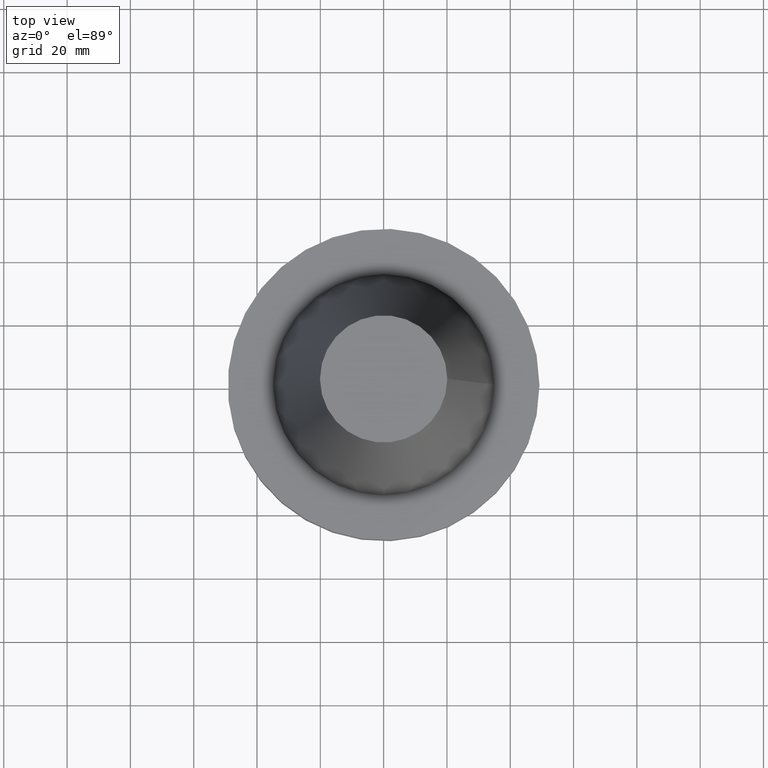
[diagram: clean part render]
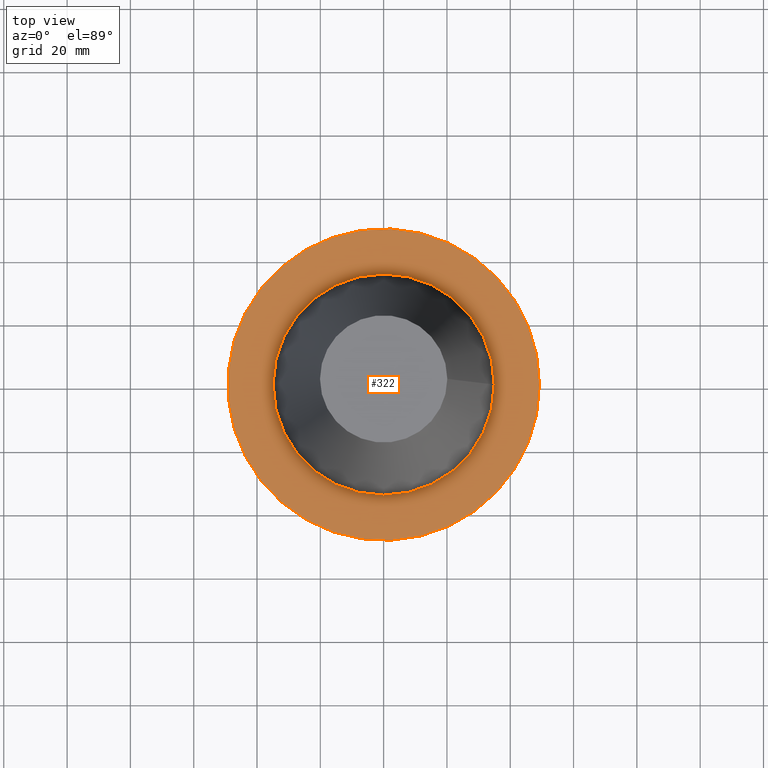
[diagram: same view with one face highlighted and labeled with its STEP entity id]
A machine part, top view. The second image highlights one B-rep face of the part: STEP entity #322.
In plain terms, the highlighted planar face has unit normal (0, 0, -1).
Its self-contained STEP definition (entity closure, byte-faithful):
#32 = AXIS2_PLACEMENT_3D ( 'NONE', #385, #292, #124 ) ;
#48 = CARTESIAN_POINT ( 'NONE',  ( 49.21499999999999631, 0.000000000000000000, -1.499999999999987566 ) ) ;
#58 = EDGE_CURVE ( 'NONE', #270, #270, #394, .T. ) ;
#69 = EDGE_LOOP ( 'NONE', ( #198 ) ) ;
#76 = EDGE_LOOP ( 'NONE', ( #368 ) ) ;
#79 = DIRECTION ( 'NONE',  ( -1.000000000000000000, 0.000000000000000000, -0.000000000000000000 ) ) ;
#83 = DIRECTION ( 'NONE',  ( -0.000000000000000000, -0.000000000000000000, 1.000000000000000000 ) ) ;
#86 = VERTEX_POINT ( 'NONE', #48 ) ;
#124 = DIRECTION ( 'NONE',  ( 1.000000000000000000, 0.000000000000000000, 0.000000000000000000 ) ) ;
#127 = AXIS2_PLACEMENT_3D ( 'NONE', #351, #83, #271 ) ;
#137 = CARTESIAN_POINT ( 'NONE',  ( 0.000000000000000000, 49.21499999999999631, -1.499999999999992895 ) ) ;
#163 = EDGE_CURVE ( 'NONE', #86, #86, #297, .T. ) ;
#198 = ORIENTED_EDGE ( 'NONE', *, *, #58, .F. ) ;
#233 = FACE_BOUND ( 'NONE', #69, .T. ) ;
#238 = AXIS2_PLACEMENT_3D ( 'NONE', #137, #259, #79 ) ;
#259 = DIRECTION ( 'NONE',  ( 0.000000000000000000, 0.000000000000000000, -1.000000000000000000 ) ) ;
#270 = VERTEX_POINT ( 'NONE', #356 ) ;
#271 = DIRECTION ( 'NONE',  ( 1.000000000000000000, 0.000000000000000000, 0.000000000000000000 ) ) ;
#292 = DIRECTION ( 'NONE',  ( -0.000000000000000000, -0.000000000000000000, 1.000000000000000000 ) ) ;
#297 = CIRCLE ( 'NONE', #127, 49.21499999999999631 ) ;
#322 = ADVANCED_FACE ( 'NONE', ( #233, #341 ), #349, .F. ) ;
#341 = FACE_OUTER_BOUND ( 'NONE', #76, .T. ) ;
#349 = PLANE ( 'NONE',  #238 ) ;
#351 = CARTESIAN_POINT ( 'NONE',  ( 0.000000000000000000, 0.000000000000000000, -1.499999999999987566 ) ) ;
#356 = CARTESIAN_POINT ( 'NONE',  ( 34.92499999999999005, 0.000000000000000000, -1.499999999999987566 ) ) ;
#368 = ORIENTED_EDGE ( 'NONE', *, *, #163, .T. ) ;
#385 = CARTESIAN_POINT ( 'NONE',  ( 0.000000000000000000, 0.000000000000000000, -1.499999999999987566 ) ) ;
#394 = CIRCLE ( 'NONE', #32, 34.92499999999999005 ) ;